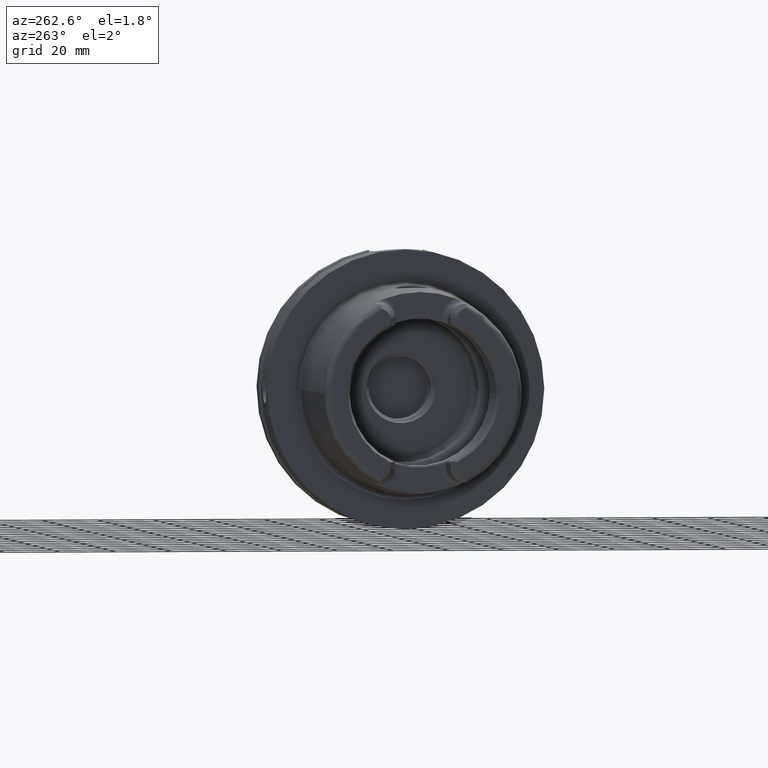
[diagram: clean part render]
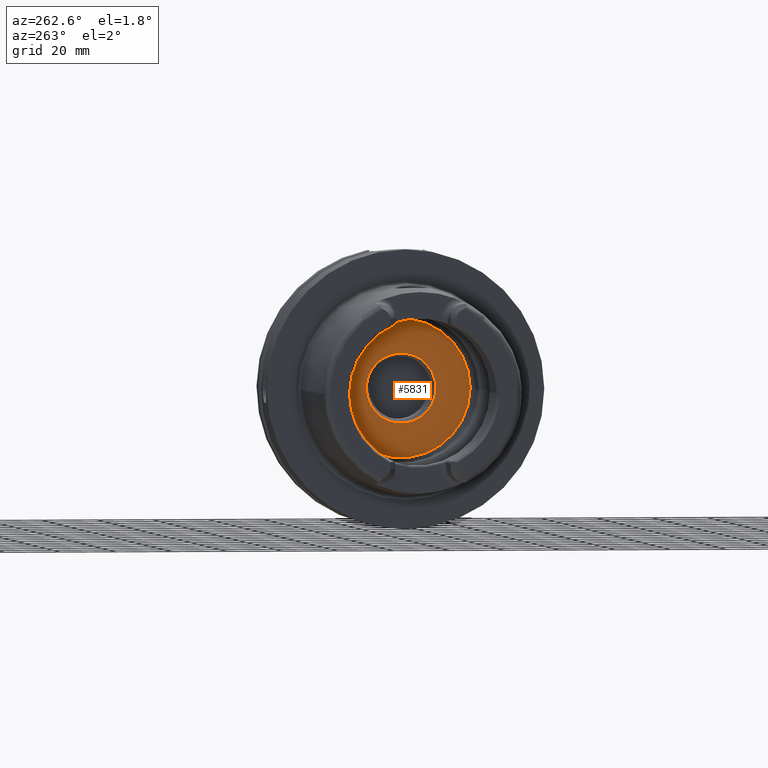
[diagram: same view with one face highlighted and labeled with its STEP entity id]
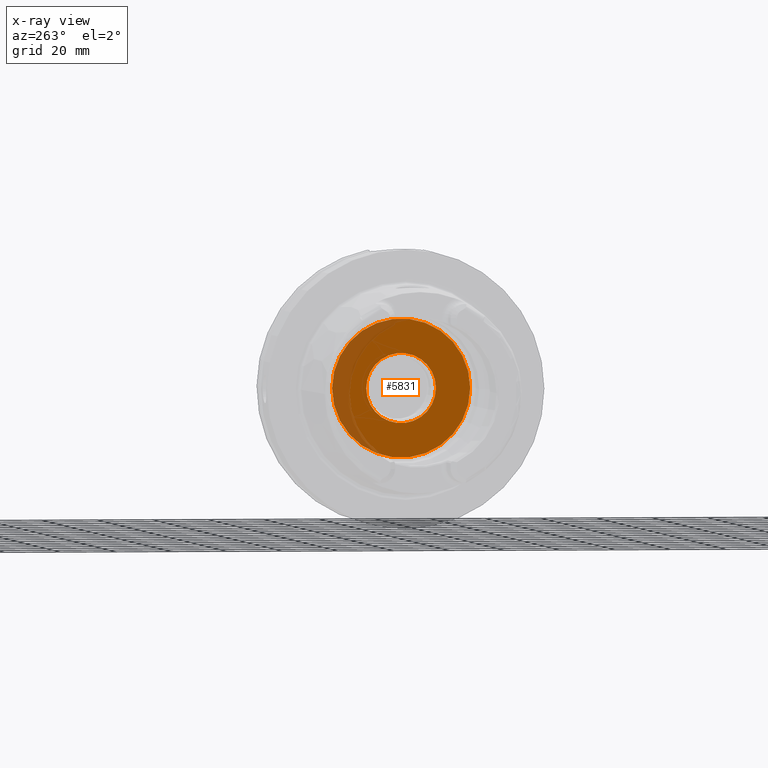
[diagram: x-ray of the same camera — body ghosted, the highlighted face saturated]
A machine part, auxiliary view. The second image highlights one B-rep face of the part: STEP entity #5831.
The next image is the same camera in x-ray: the body ghosted, the highlighted face saturated — about 20% of this face is hidden behind the body in this view.
In plain terms, the highlighted planar face has unit normal (1, 0, 0).
Its self-contained STEP definition (entity closure, byte-faithful):
#2260=CARTESIAN_POINT('',(1.25E1,0.E0,0.E0));
#2261=DIRECTION('',(1.E0,0.E0,0.E0));
#2262=DIRECTION('',(0.E0,1.E0,0.E0));
#2263=AXIS2_PLACEMENT_3D('',#2260,#2261,#2262);
#2270=CARTESIAN_POINT('',(1.25E1,0.E0,0.E0));
#2271=DIRECTION('',(-1.E0,0.E0,0.E0));
#2272=DIRECTION('',(0.E0,1.E0,0.E0));
#2273=AXIS2_PLACEMENT_3D('',#2270,#2271,#2272);
#2280=CARTESIAN_POINT('',(1.25E1,0.E0,0.E0));
#2281=DIRECTION('',(1.E0,0.E0,0.E0));
#2282=DIRECTION('',(0.E0,-1.E0,0.E0));
#2283=AXIS2_PLACEMENT_3D('',#2280,#2281,#2282);
#2285=CARTESIAN_POINT('',(1.25E1,0.E0,0.E0));
#2286=DIRECTION('',(1.E0,0.E0,0.E0));
#2287=DIRECTION('',(0.E0,1.E0,0.E0));
#2288=AXIS2_PLACEMENT_3D('',#2285,#2286,#2287);
#2725=CARTESIAN_POINT('',(1.25E1,2.49E1,0.E0));
#2727=VERTEX_POINT('',#2725);
#2729=CARTESIAN_POINT('',(1.25E1,-2.49E1,0.E0));
#2731=VERTEX_POINT('',#2729);
#3113=CARTESIAN_POINT('',(1.25E1,-1.25665E1,0.E0));
#3114=CARTESIAN_POINT('',(1.25E1,1.25665E1,0.E0));
#3115=VERTEX_POINT('',#3113);
#3116=VERTEX_POINT('',#3114);
#5816=CARTESIAN_POINT('',(1.25E1,0.E0,0.E0));
#5817=DIRECTION('',(1.E0,0.E0,0.E0));
#5818=DIRECTION('',(0.E0,-1.E0,0.E0));
#5819=AXIS2_PLACEMENT_3D('',#5816,#5817,#5818);
#5820=PLANE('',#5819);
#5821=ORIENTED_EDGE('',*,*,#5798,.T.);
#5822=ORIENTED_EDGE('',*,*,#5809,.F.);
#5823=EDGE_LOOP('',(#5821,#5822));
#5824=FACE_OUTER_BOUND('',#5823,.F.);
#5826=ORIENTED_EDGE('',*,*,#5825,.F.);
#5828=ORIENTED_EDGE('',*,*,#5827,.F.);
#5829=EDGE_LOOP('',(#5826,#5828));
#5830=FACE_BOUND('',#5829,.F.);
#5831=ADVANCED_FACE('',(#5824,#5830),#5820,.F.);
#2264=CIRCLE('',#2263,2.49E1);
#2274=CIRCLE('',#2273,2.49E1);
#2284=CIRCLE('',#2283,1.25665E1);
#2289=CIRCLE('',#2288,1.25665E1);
#5798=EDGE_CURVE('',#2727,#2731,#2264,.T.);
#5809=EDGE_CURVE('',#2727,#2731,#2274,.T.);
#5825=EDGE_CURVE('',#3115,#3116,#2284,.T.);
#5827=EDGE_CURVE('',#3116,#3115,#2289,.T.);